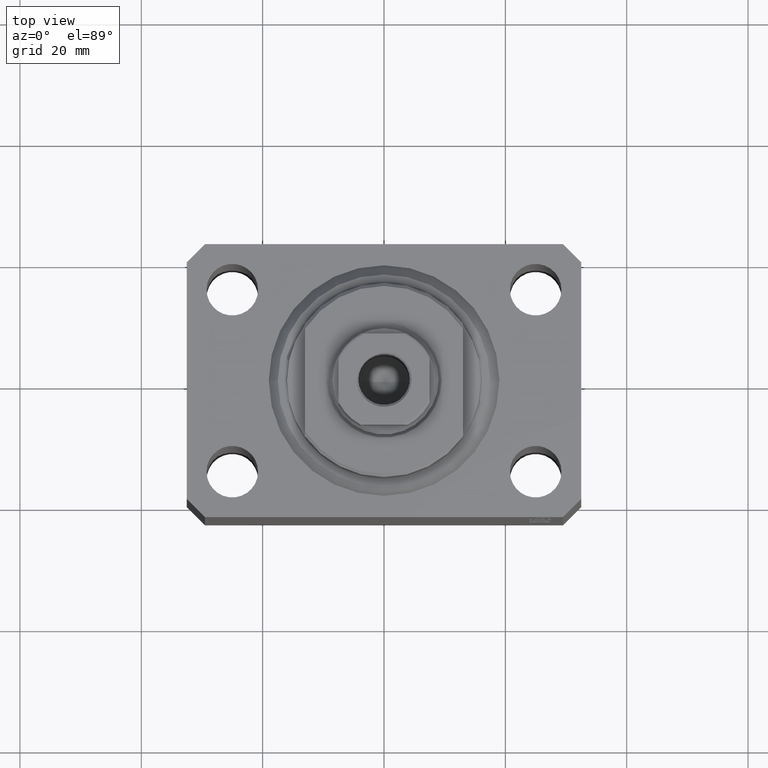
[diagram: clean part render]
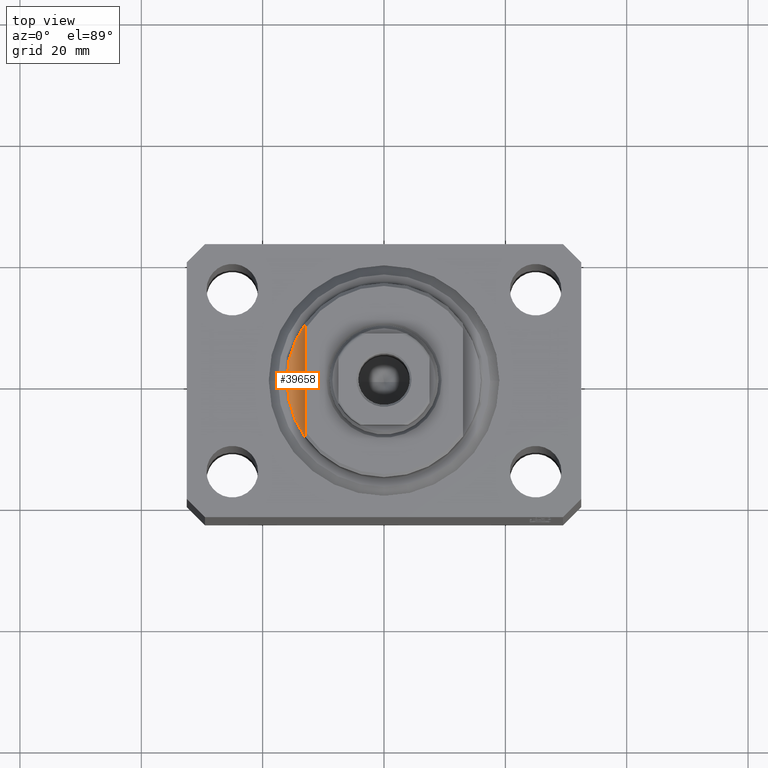
[diagram: same view with one face highlighted and labeled with its STEP entity id]
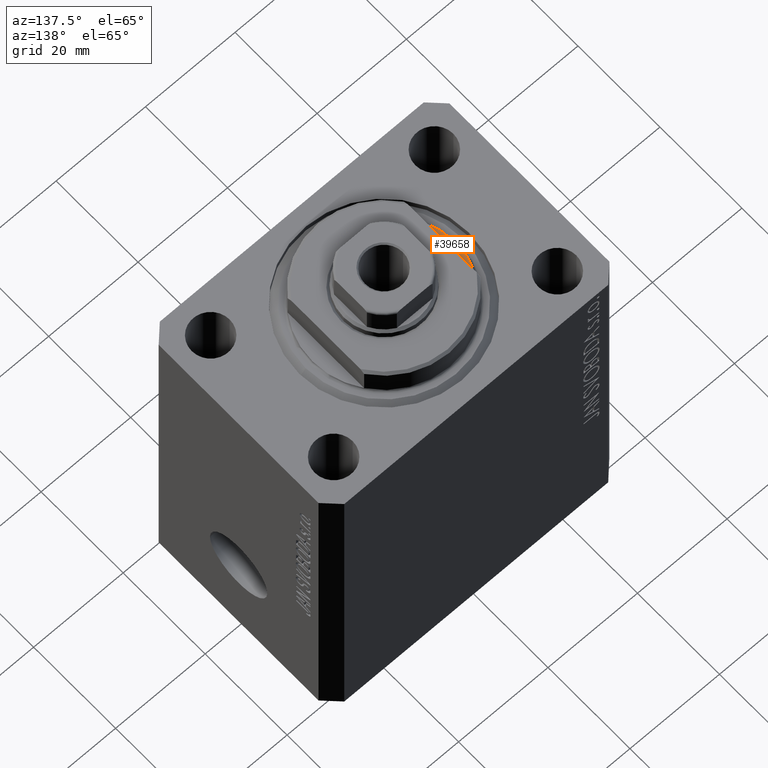
[diagram: same view with one face highlighted and labeled with its STEP entity id]
A machine part, top view. The second image highlights one B-rep face of the part: STEP entity #39658.
A second angle (auxiliary view) of the same face is appended — the face is thin or edge-on in the first view.
In plain terms, the highlighted planar face has unit normal (0, 0, 1).
Its self-contained STEP definition (entity closure, byte-faithful):
#1996 = DIRECTION ( 'NONE',  ( 0.000000000000000000, 0.000000000000000000, -1.000000000000000000 ) ) ;
#4240 = DIRECTION ( 'NONE',  ( -0.000000000000000000, -0.000000000000000000, -1.000000000000000000 ) ) ;
#6552 = CARTESIAN_POINT ( 'NONE',  ( 13.00000000000000000, -43.08131845707602992, -0.4999999999999995559 ) ) ;
#7637 = CARTESIAN_POINT ( 'NONE',  ( 0.000000000000000000, 0.000000000000000000, -0.4999999999999995559 ) ) ;
#9119 = DIRECTION ( 'NONE',  ( 1.000000000000000000, 0.000000000000000000, 0.000000000000000000 ) ) ;
#10012 = CARTESIAN_POINT ( 'NONE',  ( 0.000000000000000000, 0.000000000000000000, -0.4999999999999995559 ) ) ;
#11499 = AXIS2_PLACEMENT_3D ( 'NONE', #7637, #4240, #20972 ) ;
#11607 = CARTESIAN_POINT ( 'NONE',  ( 16.00000000000000000, 0.000000000000000000, -0.4999999999999995559 ) ) ;
#12695 = EDGE_CURVE ( 'NONE', #38597, #34950, #33920, .T. ) ;
#13243 = EDGE_LOOP ( 'NONE', ( #41054, #44054, #21635 ) ) ;
#14233 = DIRECTION ( 'NONE',  ( 0.000000000000000000, -1.000000000000000000, -0.000000000000000000 ) ) ;
#17178 = LINE ( 'NONE', #6552, #18272 ) ;
#18272 = VECTOR ( 'NONE', #14233, 1000.000000000000000 ) ;
#18450 = EDGE_CURVE ( 'NONE', #34950, #34163, #41296, .T. ) ;
#20571 = CARTESIAN_POINT ( 'NONE',  ( 13.00000000000000000, -9.327379053088815652, -0.4999999999999995559 ) ) ;
#20972 = DIRECTION ( 'NONE',  ( 1.000000000000000000, 5.329070518200751394E-15, 0.000000000000000000 ) ) ;
#21635 = ORIENTED_EDGE ( 'NONE', *, *, #27108, .F. ) ;
#22613 = AXIS2_PLACEMENT_3D ( 'NONE', #32975, #1996, #43357 ) ;
#26182 = PLANE ( 'NONE',  #22613 ) ;
#27108 = EDGE_CURVE ( 'NONE', #38597, #34163, #17178, .T. ) ;
#29574 = FACE_OUTER_BOUND ( 'NONE', #13243, .T. ) ;
#32975 = CARTESIAN_POINT ( 'NONE',  ( 0.000000000000000000, 0.000000000000000000, -0.4999999999999995559 ) ) ;
#33920 = CIRCLE ( 'NONE', #11499, 16.00000000000000000 ) ;
#34163 = VERTEX_POINT ( 'NONE', #20571 ) ;
#34950 = VERTEX_POINT ( 'NONE', #11607 ) ;
#37608 = DIRECTION ( 'NONE',  ( -0.000000000000000000, -0.000000000000000000, -1.000000000000000000 ) ) ;
#38597 = VERTEX_POINT ( 'NONE', #39317 ) ;
#39317 = CARTESIAN_POINT ( 'NONE',  ( 13.00000000000000000, 9.327379053088815652, -0.4999999999999995559 ) ) ;
#39658 = ADVANCED_FACE ( 'NONE', ( #29574 ), #26182, .T. ) ;
#41054 = ORIENTED_EDGE ( 'NONE', *, *, #12695, .T. ) ;
#41296 = CIRCLE ( 'NONE', #42737, 16.00000000000000000 ) ;
#42737 = AXIS2_PLACEMENT_3D ( 'NONE', #10012, #37608, #9119 ) ;
#43357 = DIRECTION ( 'NONE',  ( 1.000000000000000000, 0.000000000000000000, 0.000000000000000000 ) ) ;
#44054 = ORIENTED_EDGE ( 'NONE', *, *, #18450, .T. ) ;